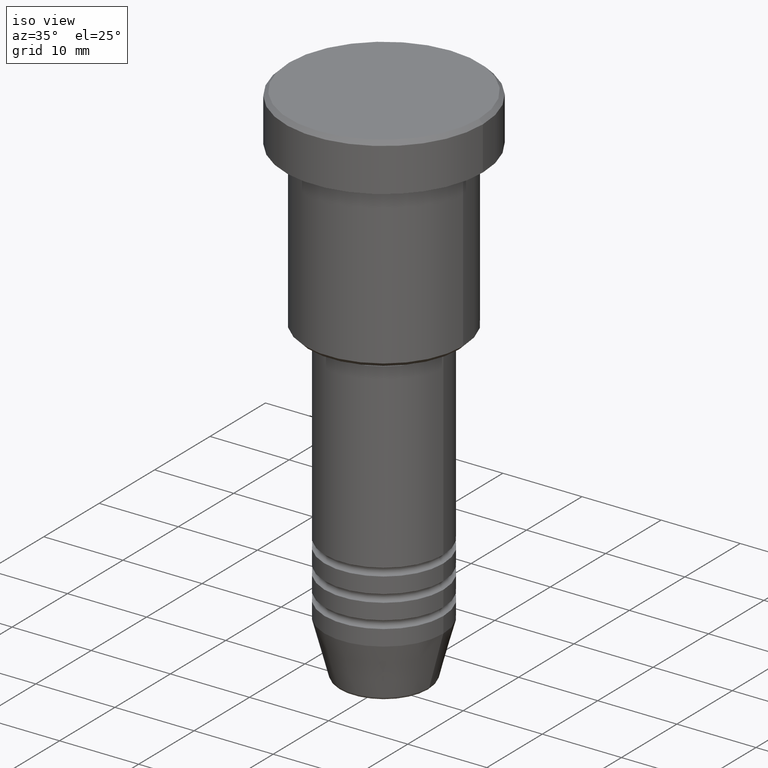
[diagram: clean part render]
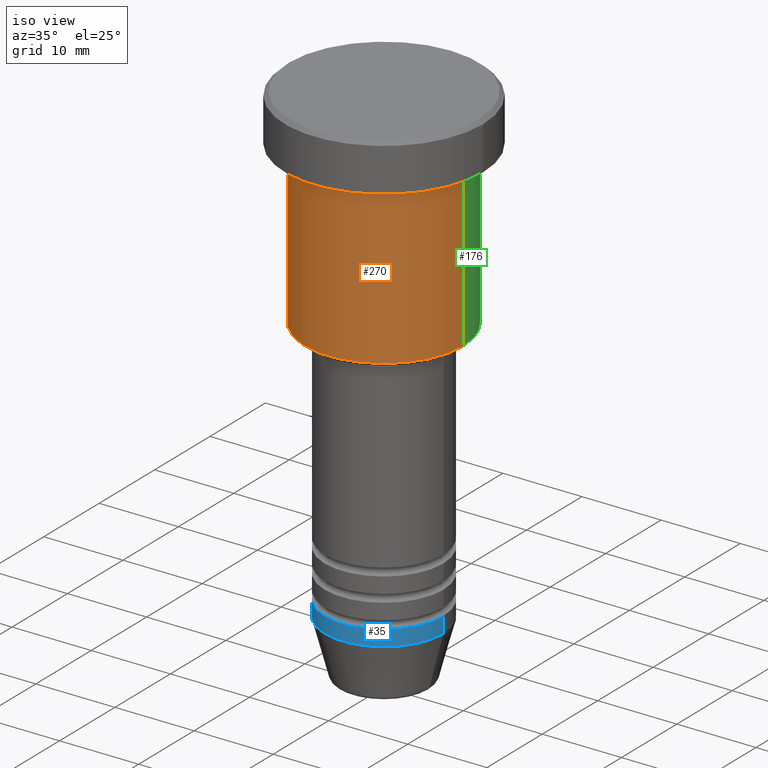
[diagram: same view with three faces highlighted in distinct colors, each labeled with its STEP entity id]
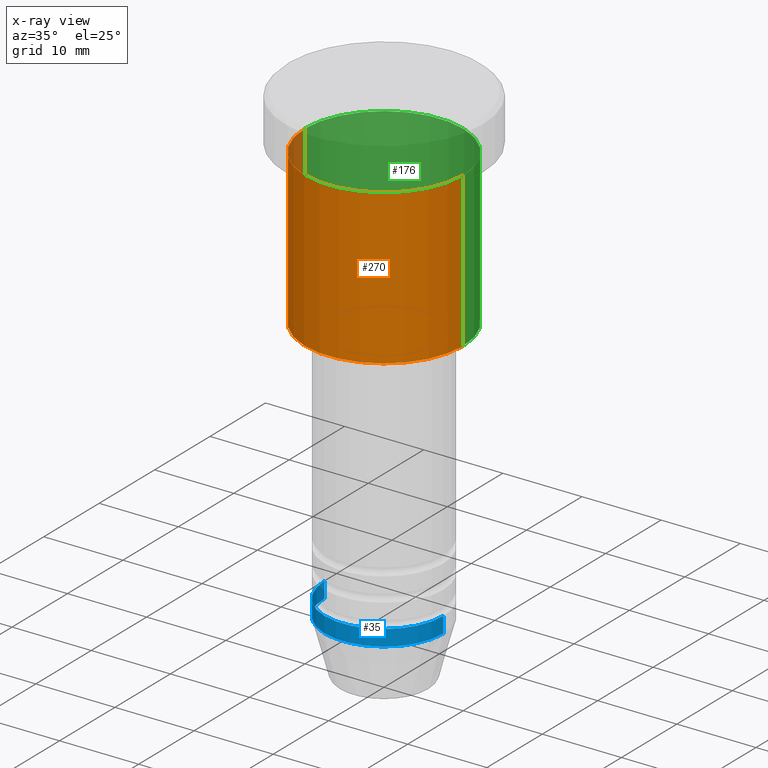
[diagram: x-ray of the same camera — body ghosted, the three highlighted faces saturated]
A machine part, iso view with three faces highlighted in distinct colors.
The next image is the same camera in x-ray (body ghosted, the three faces saturated) — at least one of them is partly hidden behind the body in this view.
Their STEP definitions:

[orange] entity #270 — the highlighted cylindrical surface (partial cylindrical patch) has radius 10 mm, axis along (-0, -0, 1).
#3 = DIRECTION ( 'NONE',  ( -0.000000000000000000, -0.000000000000000000, 1.000000000000000000 ) ) ;
#58 = CARTESIAN_POINT ( 'NONE',  ( 10.00000000000000000, 0.000000000000000000, 0.000000000000000000 ) ) ;
#59 = CARTESIAN_POINT ( 'NONE',  ( 0.000000000000000000, 0.000000000000000000, -6.999999999999996447 ) ) ;
#76 = CARTESIAN_POINT ( 'NONE',  ( -10.00000000000000000, 1.224646799147353256E-15, -6.999999999999996447 ) ) ;
#90 = CARTESIAN_POINT ( 'NONE',  ( -10.00000000000000000, 1.224646799147353256E-15, 0.000000000000000000 ) ) ;
#139 = VERTEX_POINT ( 'NONE', #231 ) ;
#168 = VERTEX_POINT ( 'NONE', #865 ) ;
#193 = DIRECTION ( 'NONE',  ( -0.000000000000000000, -0.000000000000000000, 1.000000000000000000 ) ) ;
#226 = EDGE_CURVE ( 'NONE', #1174, #413, #278, .T. ) ;
#231 = CARTESIAN_POINT ( 'NONE',  ( -10.00000000000000000, 1.224646799147353256E-15, -26.49999999999999645 ) ) ;
#252 = DIRECTION ( 'NONE',  ( -0.000000000000000000, -0.000000000000000000, 1.000000000000000000 ) ) ;
#255 = DIRECTION ( 'NONE',  ( -1.000000000000000000, 0.000000000000000000, 0.000000000000000000 ) ) ;
#270 = ADVANCED_FACE ( 'NONE', ( #804 ), #985, .T. ) ;
#278 = CIRCLE ( 'NONE', #892, 10.00000000000000000 ) ;
#297 = AXIS2_PLACEMENT_3D ( 'NONE', #1087, #520, #437 ) ;
#331 = VECTOR ( 'NONE', #193, 1000.000000000000000 ) ;
#335 = ORIENTED_EDGE ( 'NONE', *, *, #226, .F. ) ;
#355 = ORIENTED_EDGE ( 'NONE', *, *, #1048, .F. ) ;
#413 = VERTEX_POINT ( 'NONE', #1043 ) ;
#415 = DIRECTION ( 'NONE',  ( -0.000000000000000000, -0.000000000000000000, 1.000000000000000000 ) ) ;
#437 = DIRECTION ( 'NONE',  ( 1.000000000000000000, 0.000000000000000000, 0.000000000000000000 ) ) ;
#498 = EDGE_LOOP ( 'NONE', ( #355, #1036, #805, #335 ) ) ;
#520 = DIRECTION ( 'NONE',  ( -0.000000000000000000, -0.000000000000000000, 1.000000000000000000 ) ) ;
#550 = LINE ( 'NONE', #90, #331 ) ;
#599 = CARTESIAN_POINT ( 'NONE',  ( 0.000000000000000000, 0.000000000000000000, -26.49999999999999645 ) ) ;
#616 = LINE ( 'NONE', #58, #1011 ) ;
#646 = AXIS2_PLACEMENT_3D ( 'NONE', #599, #3, #255 ) ;
#804 = FACE_OUTER_BOUND ( 'NONE', #498, .T. ) ;
#805 = ORIENTED_EDGE ( 'NONE', *, *, #1167, .T. ) ;
#865 = CARTESIAN_POINT ( 'NONE',  ( 10.00000000000000000, 0.000000000000000000, -26.49999999999999645 ) ) ;
#892 = AXIS2_PLACEMENT_3D ( 'NONE', #59, #415, #1158 ) ;
#985 = CYLINDRICAL_SURFACE ( 'NONE', #297, 10.00000000000000000 ) ;
#994 = CIRCLE ( 'NONE', #646, 10.00000000000000000 ) ;
#1011 = VECTOR ( 'NONE', #252, 1000.000000000000000 ) ;
#1036 = ORIENTED_EDGE ( 'NONE', *, *, #1119, .T. ) ;
#1043 = CARTESIAN_POINT ( 'NONE',  ( 10.00000000000000000, 0.000000000000000000, -6.999999999999996447 ) ) ;
#1048 = EDGE_CURVE ( 'NONE', #139, #1174, #550, .T. ) ;
#1087 = CARTESIAN_POINT ( 'NONE',  ( 0.000000000000000000, 0.000000000000000000, 0.000000000000000000 ) ) ;
#1119 = EDGE_CURVE ( 'NONE', #139, #168, #994, .T. ) ;
#1158 = DIRECTION ( 'NONE',  ( 1.000000000000000000, 0.000000000000000000, 0.000000000000000000 ) ) ;
#1167 = EDGE_CURVE ( 'NONE', #168, #413, #616, .T. ) ;
#1174 = VERTEX_POINT ( 'NONE', #76 ) ;

[blue] entity #35 — the highlighted cylindrical surface (partial cylindrical patch) has radius 7.5 mm, axis along (-0, -0, 1).
#17 = DIRECTION ( 'NONE',  ( -0.000000000000000000, -0.000000000000000000, 1.000000000000000000 ) ) ;
#35 = ADVANCED_FACE ( 'NONE', ( #196 ), #759, .T. ) ;
#48 = DIRECTION ( 'NONE',  ( -0.000000000000000000, -0.000000000000000000, 1.000000000000000000 ) ) ;
#74 = AXIS2_PLACEMENT_3D ( 'NONE', #651, #17, #1098 ) ;
#85 = EDGE_CURVE ( 'NONE', #142, #321, #152, .T. ) ;
#142 = VERTEX_POINT ( 'NONE', #418 ) ;
#152 = LINE ( 'NONE', #409, #185 ) ;
#157 = LINE ( 'NONE', #248, #1148 ) ;
#161 = CARTESIAN_POINT ( 'NONE',  ( -7.500000000000000000, 9.184850993605147944E-16, -57.99999999999999289 ) ) ;
#162 = AXIS2_PLACEMENT_3D ( 'NONE', #209, #659, #575 ) ;
#174 = VERTEX_POINT ( 'NONE', #492 ) ;
#185 = VECTOR ( 'NONE', #48, 1000.000000000000000 ) ;
#196 = FACE_OUTER_BOUND ( 'NONE', #320, .T. ) ;
#209 = CARTESIAN_POINT ( 'NONE',  ( 0.000000000000000000, 0.000000000000000000, 0.000000000000000000 ) ) ;
#248 = CARTESIAN_POINT ( 'NONE',  ( 7.500000000000000000, 0.000000000000000000, 0.000000000000000000 ) ) ;
#256 = EDGE_CURVE ( 'NONE', #174, #419, #157, .T. ) ;
#281 = AXIS2_PLACEMENT_3D ( 'NONE', #433, #811, #1003 ) ;
#320 = EDGE_LOOP ( 'NONE', ( #542, #399, #360, #496 ) ) ;
#321 = VERTEX_POINT ( 'NONE', #161 ) ;
#342 = EDGE_CURVE ( 'NONE', #321, #419, #802, .T. ) ;
#360 = ORIENTED_EDGE ( 'NONE', *, *, #256, .T. ) ;
#399 = ORIENTED_EDGE ( 'NONE', *, *, #851, .T. ) ;
#409 = CARTESIAN_POINT ( 'NONE',  ( -7.500000000000000000, 9.184850993605147944E-16, 0.000000000000000000 ) ) ;
#418 = CARTESIAN_POINT ( 'NONE',  ( -7.500000000000000000, 9.184850993605147944E-16, -60.00000000000000000 ) ) ;
#419 = VERTEX_POINT ( 'NONE', #1136 ) ;
#433 = CARTESIAN_POINT ( 'NONE',  ( 0.000000000000000000, 0.000000000000000000, -57.99999999999999289 ) ) ;
#472 = CIRCLE ( 'NONE', #74, 7.500000000000000000 ) ;
#492 = CARTESIAN_POINT ( 'NONE',  ( 7.500000000000000000, 0.000000000000000000, -60.00000000000000000 ) ) ;
#496 = ORIENTED_EDGE ( 'NONE', *, *, #342, .F. ) ;
#542 = ORIENTED_EDGE ( 'NONE', *, *, #85, .F. ) ;
#575 = DIRECTION ( 'NONE',  ( 1.000000000000000000, 0.000000000000000000, 0.000000000000000000 ) ) ;
#651 = CARTESIAN_POINT ( 'NONE',  ( 0.000000000000000000, 0.000000000000000000, -60.00000000000000000 ) ) ;
#659 = DIRECTION ( 'NONE',  ( -0.000000000000000000, -0.000000000000000000, 1.000000000000000000 ) ) ;
#759 = CYLINDRICAL_SURFACE ( 'NONE', #162, 7.500000000000000000 ) ;
#802 = CIRCLE ( 'NONE', #281, 7.500000000000000000 ) ;
#811 = DIRECTION ( 'NONE',  ( -0.000000000000000000, -0.000000000000000000, 1.000000000000000000 ) ) ;
#851 = EDGE_CURVE ( 'NONE', #142, #174, #472, .T. ) ;
#889 = DIRECTION ( 'NONE',  ( -0.000000000000000000, -0.000000000000000000, 1.000000000000000000 ) ) ;
#1003 = DIRECTION ( 'NONE',  ( 1.000000000000000000, 0.000000000000000000, 0.000000000000000000 ) ) ;
#1098 = DIRECTION ( 'NONE',  ( 1.000000000000000000, 0.000000000000000000, 0.000000000000000000 ) ) ;
#1136 = CARTESIAN_POINT ( 'NONE',  ( 7.500000000000000000, 0.000000000000000000, -57.99999999999999289 ) ) ;
#1148 = VECTOR ( 'NONE', #889, 1000.000000000000000 ) ;

[green] entity #176 — the highlighted cylindrical surface (partial cylindrical patch) has radius 10 mm, axis along (-0, -0, 1).
#34 = CIRCLE ( 'NONE', #145, 10.00000000000000000 ) ;
#58 = CARTESIAN_POINT ( 'NONE',  ( 10.00000000000000000, 0.000000000000000000, 0.000000000000000000 ) ) ;
#66 = EDGE_CURVE ( 'NONE', #413, #1174, #34, .T. ) ;
#76 = CARTESIAN_POINT ( 'NONE',  ( -10.00000000000000000, 1.224646799147353256E-15, -6.999999999999996447 ) ) ;
#90 = CARTESIAN_POINT ( 'NONE',  ( -10.00000000000000000, 1.224646799147353256E-15, 0.000000000000000000 ) ) ;
#139 = VERTEX_POINT ( 'NONE', #231 ) ;
#145 = AXIS2_PLACEMENT_3D ( 'NONE', #1019, #466, #841 ) ;
#168 = VERTEX_POINT ( 'NONE', #865 ) ;
#176 = ADVANCED_FACE ( 'NONE', ( #228 ), #969, .T. ) ;
#177 = ORIENTED_EDGE ( 'NONE', *, *, #1167, .F. ) ;
#188 = AXIS2_PLACEMENT_3D ( 'NONE', #902, #1175, #1005 ) ;
#193 = DIRECTION ( 'NONE',  ( -0.000000000000000000, -0.000000000000000000, 1.000000000000000000 ) ) ;
#215 = ORIENTED_EDGE ( 'NONE', *, *, #1048, .T. ) ;
#228 = FACE_OUTER_BOUND ( 'NONE', #721, .T. ) ;
#231 = CARTESIAN_POINT ( 'NONE',  ( -10.00000000000000000, 1.224646799147353256E-15, -26.49999999999999645 ) ) ;
#252 = DIRECTION ( 'NONE',  ( -0.000000000000000000, -0.000000000000000000, 1.000000000000000000 ) ) ;
#319 = DIRECTION ( 'NONE',  ( -0.000000000000000000, -0.000000000000000000, 1.000000000000000000 ) ) ;
#331 = VECTOR ( 'NONE', #193, 1000.000000000000000 ) ;
#413 = VERTEX_POINT ( 'NONE', #1043 ) ;
#466 = DIRECTION ( 'NONE',  ( -0.000000000000000000, -0.000000000000000000, 1.000000000000000000 ) ) ;
#511 = DIRECTION ( 'NONE',  ( 1.000000000000000000, 0.000000000000000000, 0.000000000000000000 ) ) ;
#550 = LINE ( 'NONE', #90, #331 ) ;
#616 = LINE ( 'NONE', #58, #1011 ) ;
#623 = AXIS2_PLACEMENT_3D ( 'NONE', #709, #319, #511 ) ;
#709 = CARTESIAN_POINT ( 'NONE',  ( 0.000000000000000000, 0.000000000000000000, 0.000000000000000000 ) ) ;
#721 = EDGE_LOOP ( 'NONE', ( #872, #215, #1155, #177 ) ) ;
#841 = DIRECTION ( 'NONE',  ( 1.000000000000000000, 0.000000000000000000, 0.000000000000000000 ) ) ;
#864 = EDGE_CURVE ( 'NONE', #168, #139, #914, .T. ) ;
#865 = CARTESIAN_POINT ( 'NONE',  ( 10.00000000000000000, 0.000000000000000000, -26.49999999999999645 ) ) ;
#872 = ORIENTED_EDGE ( 'NONE', *, *, #864, .T. ) ;
#902 = CARTESIAN_POINT ( 'NONE',  ( 0.000000000000000000, 0.000000000000000000, -26.49999999999999645 ) ) ;
#914 = CIRCLE ( 'NONE', #188, 10.00000000000000000 ) ;
#969 = CYLINDRICAL_SURFACE ( 'NONE', #623, 10.00000000000000000 ) ;
#1005 = DIRECTION ( 'NONE',  ( -1.000000000000000000, 0.000000000000000000, 0.000000000000000000 ) ) ;
#1011 = VECTOR ( 'NONE', #252, 1000.000000000000000 ) ;
#1019 = CARTESIAN_POINT ( 'NONE',  ( 0.000000000000000000, 0.000000000000000000, -6.999999999999996447 ) ) ;
#1043 = CARTESIAN_POINT ( 'NONE',  ( 10.00000000000000000, 0.000000000000000000, -6.999999999999996447 ) ) ;
#1048 = EDGE_CURVE ( 'NONE', #139, #1174, #550, .T. ) ;
#1155 = ORIENTED_EDGE ( 'NONE', *, *, #66, .F. ) ;
#1167 = EDGE_CURVE ( 'NONE', #168, #413, #616, .T. ) ;
#1174 = VERTEX_POINT ( 'NONE', #76 ) ;
#1175 = DIRECTION ( 'NONE',  ( -0.000000000000000000, -0.000000000000000000, 1.000000000000000000 ) ) ;